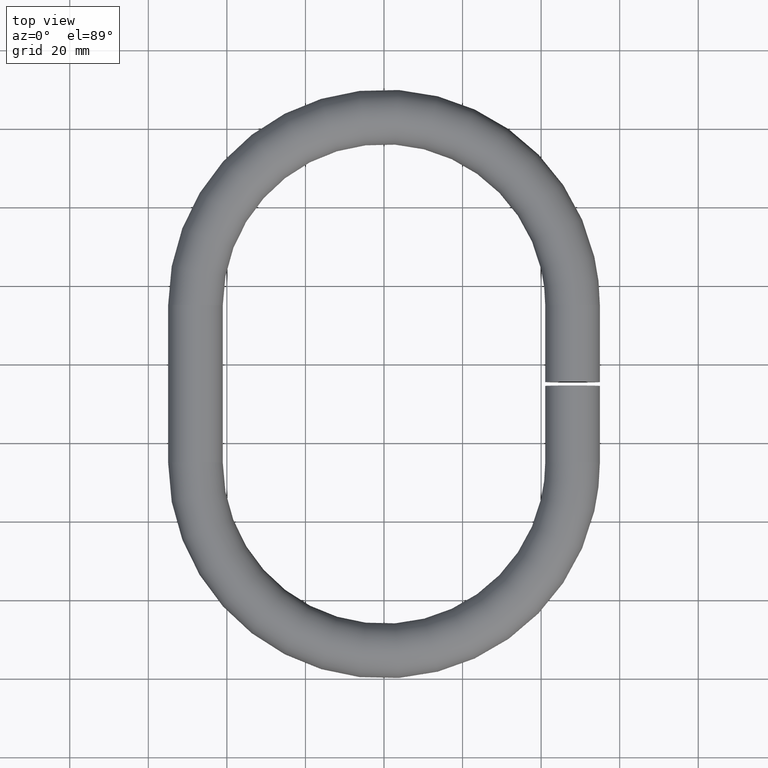
[diagram: clean part render]
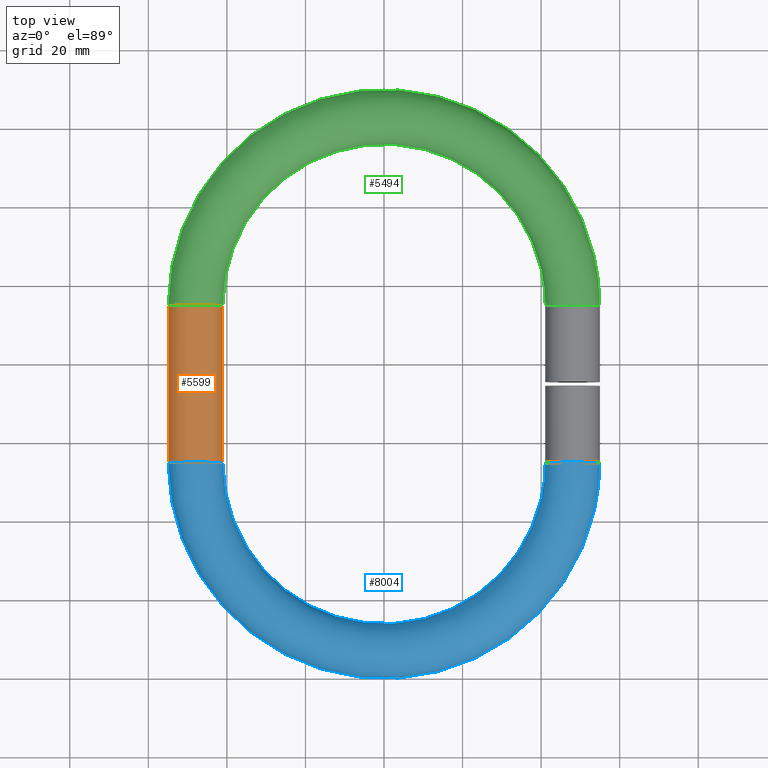
[diagram: same view with three faces highlighted in distinct colors, each labeled with its STEP entity id]
A machine part, top view with three faces highlighted in distinct colors.
Their STEP definitions:

[orange] entity #5599 — the highlighted cylindrical surface (bore or boss wall) has radius 7 mm, axis along (0, 1, 0).
#400 = FACE_OUTER_BOUND ( 'NONE', #5246, .T. ) ;
#812 = CARTESIAN_POINT ( 'NONE',  ( -48.00000000000000000, 94.99999999999998600, -7.000000000000000000 ) ) ;
#1094 = CARTESIAN_POINT ( 'NONE',  ( -48.00000000000000000, 54.99999999999999300, 0.0000000000000000000 ) ) ;
#1580 = CARTESIAN_POINT ( 'NONE',  ( -48.00000000000000000, 94.99999999999998600, 0.0000000000000000000 ) ) ;
#1769 = VERTEX_POINT ( 'NONE', #2530 ) ;
#1893 = DIRECTION ( 'NONE',  ( 0.0000000000000000000, 0.0000000000000000000, -1.000000000000000000 ) ) ;
#2209 = EDGE_LOOP ( 'NONE', ( #3644 ) ) ;
#2469 = FACE_OUTER_BOUND ( 'NONE', #2209, .T. ) ;
#2498 = DIRECTION ( 'NONE',  ( 6.123233995736766000E-017, -1.000000000000000000, 0.0000000000000000000 ) ) ;
#2530 = CARTESIAN_POINT ( 'NONE',  ( -48.00000000000000000, 54.99999999999999300, -7.000000000000000000 ) ) ;
#2632 = EDGE_CURVE ( 'NONE', #1769, #1769, #2762, .T. ) ;
#2762 = CIRCLE ( 'NONE', #5669, 7.000000000000000000 ) ;
#3437 = CIRCLE ( 'NONE', #6670, 7.000000000000000000 ) ;
#3644 = ORIENTED_EDGE ( 'NONE', *, *, #2632, .F. ) ;
#3876 = DIRECTION ( 'NONE',  ( 0.0000000000000000000, 1.000000000000000000, 0.0000000000000000000 ) ) ;
#5246 = EDGE_LOOP ( 'NONE', ( #7591 ) ) ;
#5276 = CYLINDRICAL_SURFACE ( 'NONE', #7536, 7.000000000000000000 ) ;
#5281 = EDGE_CURVE ( 'NONE', #9433, #9433, #3437, .T. ) ;
#5599 = ADVANCED_FACE ( 'NONE', ( #2469, #400 ), #5276, .T. ) ;
#5669 = AXIS2_PLACEMENT_3D ( 'NONE', #1094, #6547, #1893 ) ;
#6391 = DIRECTION ( 'NONE',  ( 0.0000000000000000000, 0.0000000000000000000, -1.000000000000000000 ) ) ;
#6547 = DIRECTION ( 'NONE',  ( 6.123233995736766000E-017, -1.000000000000000000, 0.0000000000000000000 ) ) ;
#6670 = AXIS2_PLACEMENT_3D ( 'NONE', #1580, #2498, #6391 ) ;
#6924 = DIRECTION ( 'NONE',  ( 0.0000000000000000000, 0.0000000000000000000, 1.000000000000000000 ) ) ;
#7536 = AXIS2_PLACEMENT_3D ( 'NONE', #7784, #3876, #6924 ) ;
#7591 = ORIENTED_EDGE ( 'NONE', *, *, #5281, .T. ) ;
#7784 = CARTESIAN_POINT ( 'NONE',  ( -48.00000000000000000, 54.99999999999999300, 0.0000000000000000000 ) ) ;
#9433 = VERTEX_POINT ( 'NONE', #812 ) ;

[blue] entity #8004 — the highlighted toroidal blend (fillet) surface has major radius 48 mm and minor (blend) radius 7 mm.
#1094 = CARTESIAN_POINT ( 'NONE',  ( -48.00000000000000000, 54.99999999999999300, 0.0000000000000000000 ) ) ;
#1149 = DIRECTION ( 'NONE',  ( 0.0000000000000000000, 0.0000000000000000000, 1.000000000000000000 ) ) ;
#1769 = VERTEX_POINT ( 'NONE', #2530 ) ;
#1851 = FACE_OUTER_BOUND ( 'NONE', #10091, .T. ) ;
#1893 = DIRECTION ( 'NONE',  ( 0.0000000000000000000, 0.0000000000000000000, -1.000000000000000000 ) ) ;
#2310 = ORIENTED_EDGE ( 'NONE', *, *, #7529, .F. ) ;
#2489 = VERTEX_POINT ( 'NONE', #7932 ) ;
#2501 = AXIS2_PLACEMENT_3D ( 'NONE', #8246, #1149, #2779 ) ;
#2530 = CARTESIAN_POINT ( 'NONE',  ( -48.00000000000000000, 54.99999999999999300, -7.000000000000000000 ) ) ;
#2632 = EDGE_CURVE ( 'NONE', #1769, #1769, #2762, .T. ) ;
#2762 = CIRCLE ( 'NONE', #5669, 7.000000000000000000 ) ;
#2779 = DIRECTION ( 'NONE',  ( 1.000000000000000000, 0.0000000000000000000, 0.0000000000000000000 ) ) ;
#2924 = TOROIDAL_SURFACE ( 'NONE', #2501, 48.00000000000000000, 7.000000000000000000 ) ;
#3899 = FACE_OUTER_BOUND ( 'NONE', #5350, .T. ) ;
#4481 = ORIENTED_EDGE ( 'NONE', *, *, #2632, .T. ) ;
#5350 = EDGE_LOOP ( 'NONE', ( #2310 ) ) ;
#5669 = AXIS2_PLACEMENT_3D ( 'NONE', #1094, #6547, #1893 ) ;
#6547 = DIRECTION ( 'NONE',  ( 6.123233995736766000E-017, -1.000000000000000000, 0.0000000000000000000 ) ) ;
#7529 = EDGE_CURVE ( 'NONE', #2489, #2489, #9986, .T. ) ;
#7670 = CARTESIAN_POINT ( 'NONE',  ( 48.00000000000000000, 55.00000000000001400, 0.0000000000000000000 ) ) ;
#7932 = CARTESIAN_POINT ( 'NONE',  ( 48.00000000000000000, 55.00000000000001400, -7.000000000000000000 ) ) ;
#8004 = ADVANCED_FACE ( 'NONE', ( #1851, #3899 ), #2924, .T. ) ;
#8188 = AXIS2_PLACEMENT_3D ( 'NONE', #7670, #8407, #8445 ) ;
#8246 = CARTESIAN_POINT ( 'NONE',  ( 0.0000000000000000000, 55.00000000000000000, 0.0000000000000000000 ) ) ;
#8407 = DIRECTION ( 'NONE',  ( -1.836970198721029700E-016, 1.000000000000000000, 0.0000000000000000000 ) ) ;
#8445 = DIRECTION ( 'NONE',  ( 0.0000000000000000000, 0.0000000000000000000, -1.000000000000000000 ) ) ;
#9986 = CIRCLE ( 'NONE', #8188, 7.000000000000000000 ) ;
#10091 = EDGE_LOOP ( 'NONE', ( #4481 ) ) ;

[green] entity #5494 — the highlighted toroidal blend (fillet) surface has major radius 48 mm and minor (blend) radius 7 mm.
#204 = AXIS2_PLACEMENT_3D ( 'NONE', #3378, #9660, #8041 ) ;
#500 = ORIENTED_EDGE ( 'NONE', *, *, #5281, .F. ) ;
#812 = CARTESIAN_POINT ( 'NONE',  ( -48.00000000000000000, 94.99999999999998600, -7.000000000000000000 ) ) ;
#1512 = CIRCLE ( 'NONE', #204, 7.000000000000000000 ) ;
#1580 = CARTESIAN_POINT ( 'NONE',  ( -48.00000000000000000, 94.99999999999998600, 0.0000000000000000000 ) ) ;
#1879 = FACE_OUTER_BOUND ( 'NONE', #3479, .T. ) ;
#2498 = DIRECTION ( 'NONE',  ( 6.123233995736766000E-017, -1.000000000000000000, 0.0000000000000000000 ) ) ;
#2733 = DIRECTION ( 'NONE',  ( -0.0000000000000000000, -0.0000000000000000000, -1.000000000000000000 ) ) ;
#2794 = CARTESIAN_POINT ( 'NONE',  ( 0.0000000000000000000, 95.00000000000000000, 0.0000000000000000000 ) ) ;
#3378 = CARTESIAN_POINT ( 'NONE',  ( 48.00000000000000000, 95.00000000000001400, 0.0000000000000000000 ) ) ;
#3437 = CIRCLE ( 'NONE', #6670, 7.000000000000000000 ) ;
#3479 = EDGE_LOOP ( 'NONE', ( #500 ) ) ;
#3691 = FACE_OUTER_BOUND ( 'NONE', #4879, .T. ) ;
#3957 = CARTESIAN_POINT ( 'NONE',  ( 48.00000000000000000, 95.00000000000001400, -7.000000000000000000 ) ) ;
#4863 = ORIENTED_EDGE ( 'NONE', *, *, #9685, .T. ) ;
#4879 = EDGE_LOOP ( 'NONE', ( #4863 ) ) ;
#5031 = TOROIDAL_SURFACE ( 'NONE', #6804, 48.00000000000000000, 7.000000000000000000 ) ;
#5281 = EDGE_CURVE ( 'NONE', #9433, #9433, #3437, .T. ) ;
#5494 = ADVANCED_FACE ( 'NONE', ( #1879, #3691 ), #5031, .T. ) ;
#6391 = DIRECTION ( 'NONE',  ( 0.0000000000000000000, 0.0000000000000000000, -1.000000000000000000 ) ) ;
#6670 = AXIS2_PLACEMENT_3D ( 'NONE', #1580, #2498, #6391 ) ;
#6804 = AXIS2_PLACEMENT_3D ( 'NONE', #2794, #2733, #8960 ) ;
#7381 = VERTEX_POINT ( 'NONE', #3957 ) ;
#8041 = DIRECTION ( 'NONE',  ( 0.0000000000000000000, 0.0000000000000000000, -1.000000000000000000 ) ) ;
#8960 = DIRECTION ( 'NONE',  ( -1.000000000000000000, 0.0000000000000000000, 0.0000000000000000000 ) ) ;
#9433 = VERTEX_POINT ( 'NONE', #812 ) ;
#9660 = DIRECTION ( 'NONE',  ( -1.836970198721029700E-016, 1.000000000000000000, 0.0000000000000000000 ) ) ;
#9685 = EDGE_CURVE ( 'NONE', #7381, #7381, #1512, .T. ) ;